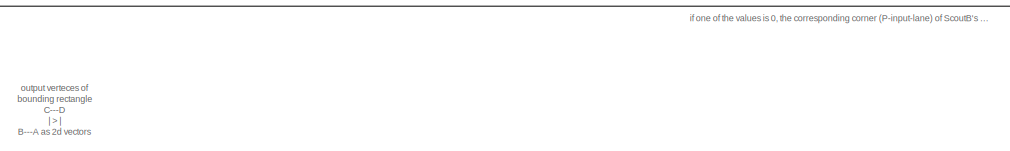
[diagram: root canvas - part 1/4, top center region]
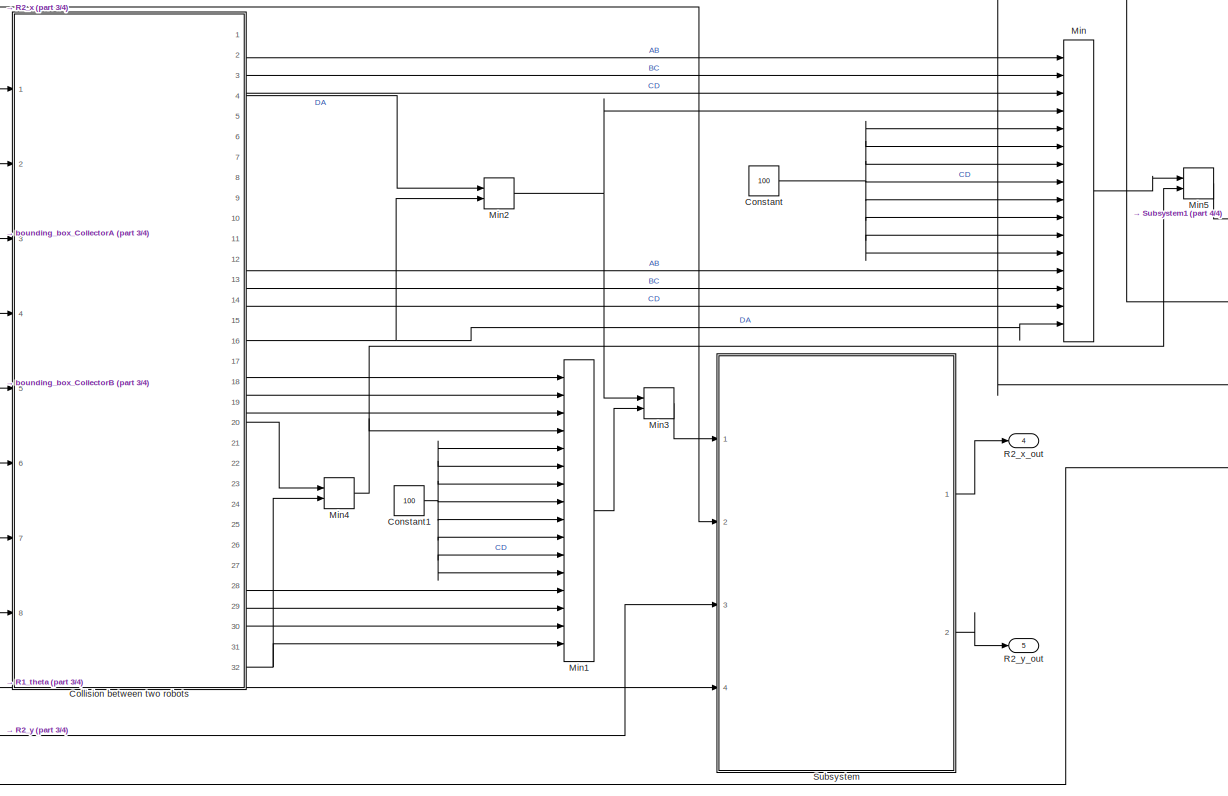
[diagram: root canvas - part 2/4, right side, full height]
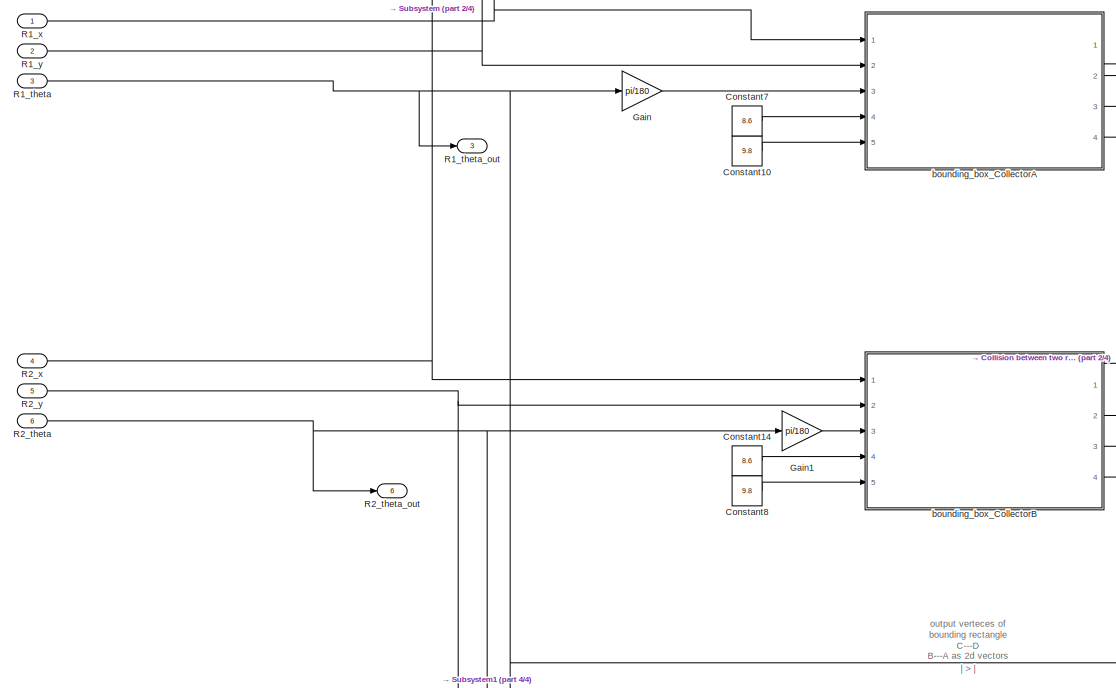
[diagram: root canvas - part 3/4, middle left region]
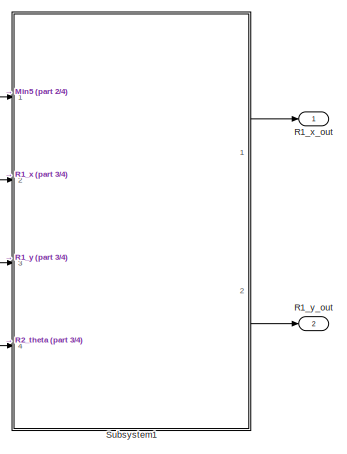
[diagram: root canvas - part 4/4, middle right region]
MODEL slx_9ae4e59e64b7
KIND model
CONFIG AbsTol = auto
CONFIG EnableMultiTasking = off
CONFIG FixedStep = 0.01
CONFIG MaxStep = .01
CONFIG MinStep = auto
CONFIG RelTol = 1e-3
CONFIG SampleTimeConstraint = Unconstrained
CONFIG Solver = VariableStepAuto
CONFIG SolverName = VariableStepAuto
CONFIG StartTime = 0.0
CONFIG StopTime = 120
BLOCK [ModelReference] Collision between two robots
  ModelNameDialog = collision_between_two_robots
  ModelReferenceVersion = 1.665
  Ports = [8, 32]
BLOCK [Constant] Constant
  Value = 100
BLOCK [Constant] Constant1
  Value = 100
BLOCK [Constant] Constant10
  Value = 9.8
BLOCK [Constant] Constant14
  Value = 8.6
BLOCK [Constant] Constant7
  Value = 8.6
BLOCK [Constant] Constant8
  Value = 9.8
BLOCK [Gain] Gain
  Gain = pi/180
  OutDataTypeStr = Inherit: Inherit via internal rule
  ParamDataTypeStr = Inherit: Inherit via internal rule
  SaturateOnIntegerOverflow = off
BLOCK [Gain] Gain1
  Gain = pi/180
  OutDataTypeStr = Inherit: Inherit via internal rule
  ParamDataTypeStr = Inherit: Inherit via internal rule
  SaturateOnIntegerOverflow = off
BLOCK [MinMax] Min
  InputSameDT = off
  Inputs = 16
  Ports = [16, 1]
  SaturateOnIntegerOverflow = off
BLOCK [MinMax] Min1
  InputSameDT = off
  Inputs = 16
  Ports = [16, 1]
  SaturateOnIntegerOverflow = off
BLOCK [MinMax] Min2
  InputSameDT = off
  Inputs = 2
  Ports = [2, 1]
  SaturateOnIntegerOverflow = off
BLOCK [MinMax] Min3
  InputSameDT = off
  Inputs = 2
  Ports = [2, 1]
  SaturateOnIntegerOverflow = off
BLOCK [MinMax] Min4
  InputSameDT = off
  Inputs = 2
  Ports = [2, 1]
  SaturateOnIntegerOverflow = off
BLOCK [MinMax] Min5
  InputSameDT = off
  Inputs = 2
  Ports = [2, 1]
  SaturateOnIntegerOverflow = off
BLOCK [Inport] R1_theta
  IconDisplay = Port number
  OutDataTypeStr = double
  Port = 3
  PortDimensions = 1
  SampleTime = 0
  SamplingMode = Sample based
  SignalType = real
BLOCK [Outport] R1_theta_out
  IconDisplay = Port number
  OutDataTypeStr = double
  Port = 3
  PortDimensions = 1
  SampleTime = 0
  SamplingMode = Sample based
  SignalType = real
BLOCK [Inport] R1_x
  IconDisplay = Port number
  OutDataTypeStr = double
  PortDimensions = 1
  SampleTime = 0
  SamplingMode = Sample based
  SignalType = real
BLOCK [Outport] R1_x_out
  IconDisplay = Port number
  OutDataTypeStr = double
  PortDimensions = 1
  SampleTime = 0
  SamplingMode = Sample based
  SignalType = real
BLOCK [Inport] R1_y
  IconDisplay = Port number
  OutDataTypeStr = double
  Port = 2
  PortDimensions = 1
  SampleTime = 0
  SamplingMode = Sample based
  SignalType = real
BLOCK [Outport] R1_y_out
  IconDisplay = Port number
  OutDataTypeStr = double
  Port = 2
  PortDimensions = 1
  SampleTime = 0
  SamplingMode = Sample based
  SignalType = real
BLOCK [Inport] R2_theta
  IconDisplay = Port number
  OutDataTypeStr = double
  Port = 6
  PortDimensions = 1
  SampleTime = 0
  SamplingMode = Sample based
  SignalType = real
BLOCK [Outport] R2_theta_out
  IconDisplay = Port number
  OutDataTypeStr = double
  Port = 6
  PortDimensions = 1
  SampleTime = 0
  SamplingMode = Sample based
  SignalType = real
BLOCK [Inport] R2_x
  IconDisplay = Port number
  OutDataTypeStr = double
  Port = 4
  PortDimensions = 1
  SampleTime = 0
  SamplingMode = Sample based
  SignalType = real
BLOCK [Outport] R2_x_out
  IconDisplay = Port number
  OutDataTypeStr = double
  Port = 4
  PortDimensions = 1
  SampleTime = 0
  SamplingMode = Sample based
  SignalType = real
BLOCK [Inport] R2_y
  IconDisplay = Port number
  OutDataTypeStr = double
  Port = 5
  PortDimensions = 1
  SampleTime = 0
  SamplingMode = Sample based
  SignalType = real
BLOCK [Outport] R2_y_out
  IconDisplay = Port number
  OutDataTypeStr = double
  Port = 5
  PortDimensions = 1
  SampleTime = 0
  SamplingMode = Sample based
  SignalType = real
BLOCK [ModelReference] Subsystem
  ModelNameDialog = calculate_collision_effects
  ModelReferenceVersion = 1.720
  Ports = [4, 2]
BLOCK [ModelReference] Subsystem1
  ModelNameDialog = calculate_collision_effects
  ModelReferenceVersion = 1.720
  Ports = [4, 2]
BLOCK [ModelReference] bounding_box_CollectorA
  ModelNameDialog = bounding_box_calc
  ModelReferenceVersion = 1.661
  Ports = [5, 4]
BLOCK [ModelReference] bounding_box_CollectorB
  ModelNameDialog = bounding_box_calc
  ModelReferenceVersion = 1.661
  Ports = [5, 4]
ANNOTATION (root): if one of the values is 0, the corresponding corner (P-input-lane) of ScoutB's BB collides with ScoutA's BB (at the corresponding edge, e.g. AB).
ANNOTATION (root): output verteces of bounding rectangle C---D | > | B---A as 2d vectors
LINE Collision between two robots:1 -> Min:1
LINE Collision between two robots:13 -> Min:13
LINE Collision between two robots:14 -> Min:14
LINE Collision between two robots:15 -> Min:15
NET Collision between two robots:16 -> Min2:2, Min:16
LINE Collision between two robots:17 -> Min1:1
LINE Collision between two robots:18 -> Min1:2
LINE Collision between two robots:19 -> Min1:3
LINE Collision between two robots:2 -> Min:2
LINE Collision between two robots:20 -> Min4:1
LINE Collision between two robots:29 -> Min1:13
LINE Collision between two robots:3 -> Min:3
LINE Collision between two robots:30 -> Min1:14
LINE Collision between two robots:31 -> Min1:15
NET Collision between two robots:32 -> Min1:16, Min4:2
LINE Collision between two robots:4 -> Min2:1
LINE Constant10:1 -> bounding_box_CollectorA:5
LINE Constant14:1 -> bounding_box_CollectorB:4
NET Constant1:1 -> Min1:10, Min1:11, Min1:12, Min1:5, Min1:6, Min1:7, Min1:8, Min1:9
LINE Constant7:1 -> bounding_box_CollectorA:4
LINE Constant8:1 -> bounding_box_CollectorB:5
NET Constant:1 -> Min:10, Min:11, Min:12, Min:5, Min:6, Min:7, Min:8, Min:9
LINE Gain1:1 -> bounding_box_CollectorB:3
LINE Gain:1 -> bounding_box_CollectorA:3
LINE Min1:1 -> Min3:2
NET Min2:1 -> Min3:1, Min:4
LINE Min3:1 -> Subsystem:1
NET Min4:1 -> Min1:4, Min5:2
LINE Min5:1 -> Subsystem1:1
LINE Min:1 -> Min5:1
NET R1_theta:1 -> Gain:1, R1_theta_out:1, Subsystem:4
NET R1_x:1 -> Subsystem1:2, bounding_box_CollectorA:1
NET R1_y:1 -> Subsystem1:3, bounding_box_CollectorA:2
NET R2_theta:1 -> Gain1:1, R2_theta_out:1, Subsystem1:4
NET R2_x:1 -> Subsystem:2, bounding_box_CollectorB:1
NET R2_y:1 -> Subsystem:3, bounding_box_CollectorB:2
LINE Subsystem1:1 -> R1_x_out:1
LINE Subsystem1:2 -> R1_y_out:1
LINE Subsystem:1 -> R2_x_out:1
LINE Subsystem:2 -> R2_y_out:1
LINE bounding_box_CollectorA:1 -> Collision between two robots:1
LINE bounding_box_CollectorA:2 -> Collision between two robots:2
LINE bounding_box_CollectorA:3 -> Collision between two robots:3
LINE bounding_box_CollectorA:4 -> Collision between two robots:4
LINE bounding_box_CollectorB:1 -> Collision between two robots:5
LINE bounding_box_CollectorB:2 -> Collision between two robots:6
LINE bounding_box_CollectorB:3 -> Collision between two robots:7
LINE bounding_box_CollectorB:4 -> Collision between two robots:8
note: NET lines group one-source signal fan-out (src -> all destinations, sorted); 1:1 wires keep LINE
